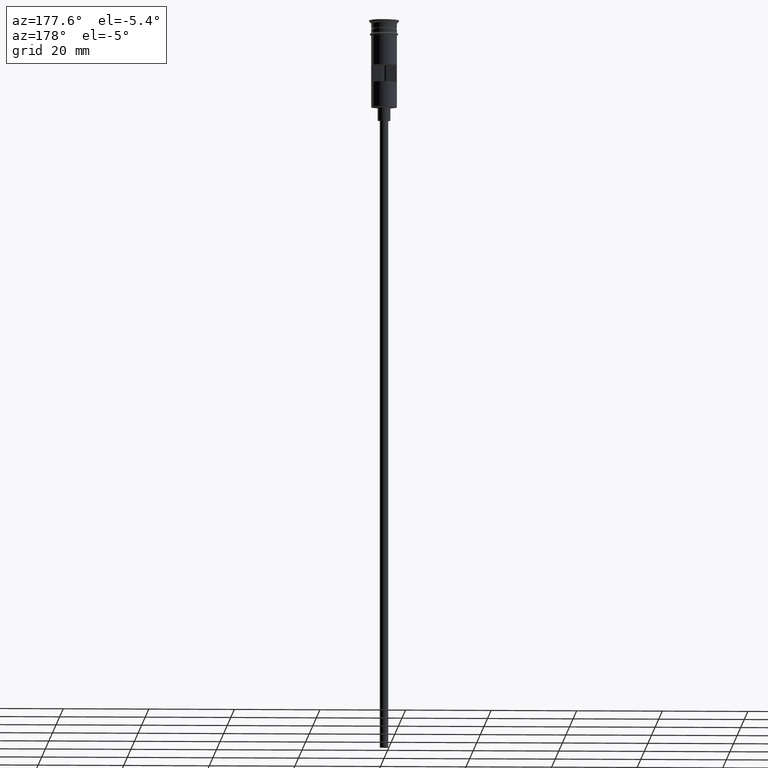
[diagram: clean part render]
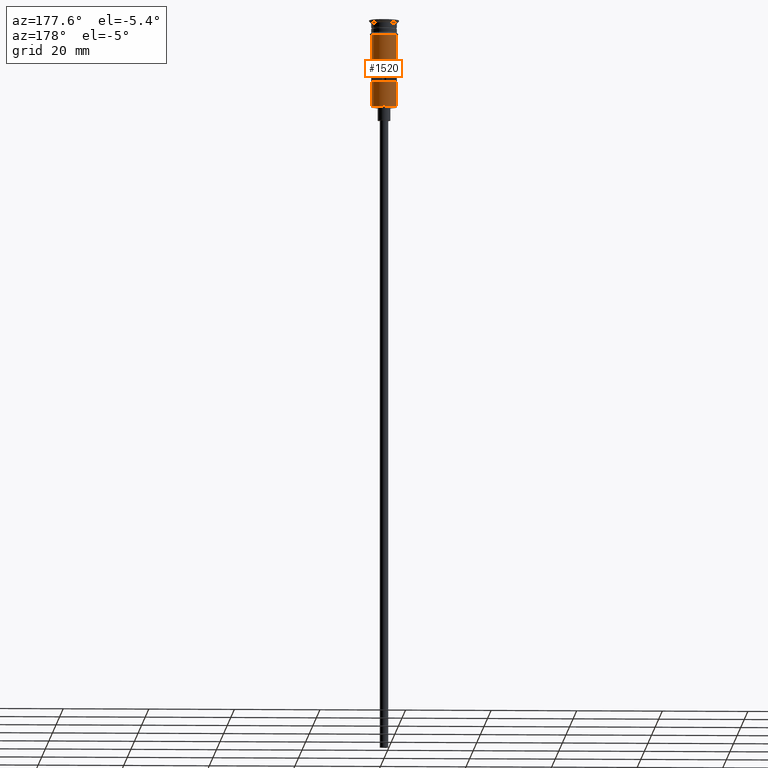
[diagram: same view with one face highlighted and labeled with its STEP entity id]
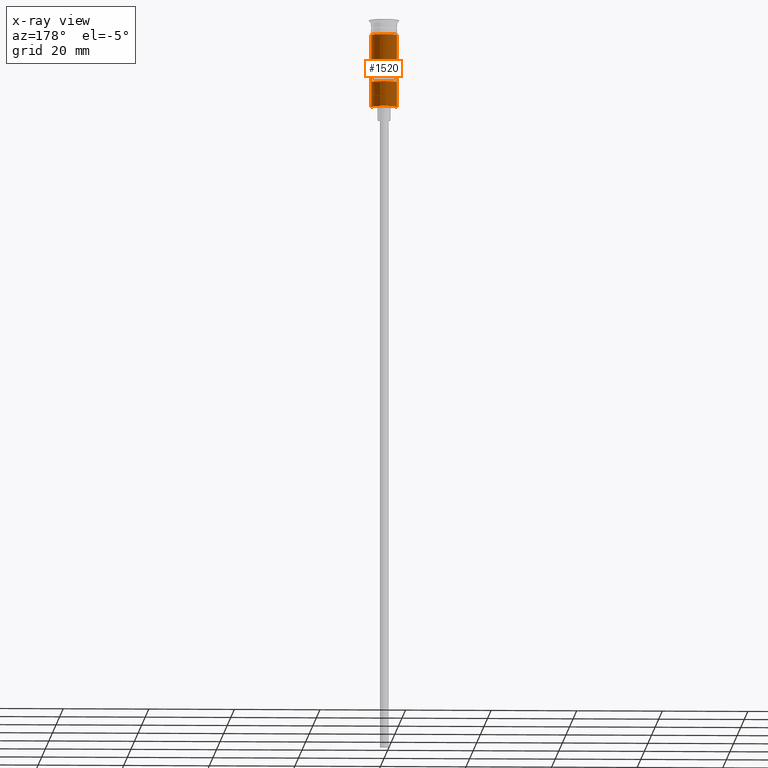
[diagram: x-ray of the same camera — body ghosted, the highlighted face saturated]
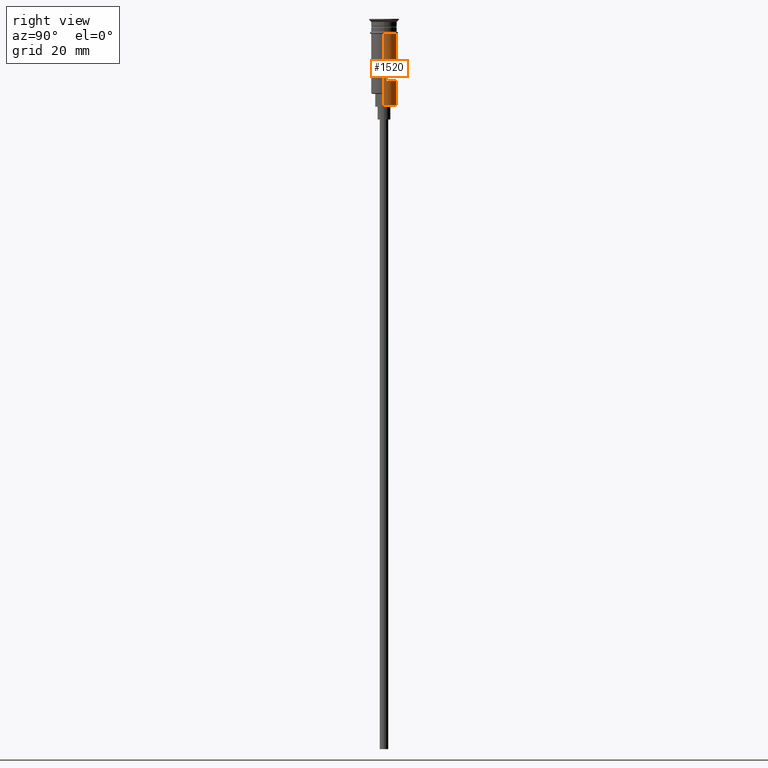
[diagram: same view with one face highlighted and labeled with its STEP entity id]
A machine part, auxiliary view. The second image highlights one B-rep face of the part: STEP entity #1520.
The next image is the same camera in x-ray: the body ghosted, the highlighted face saturated — about 0% of this face is hidden behind the body in this view.
A second angle (right view) of the same face is appended — the face is thin or edge-on in the first view.
In plain terms, the highlighted cylindrical surface (edge-blend (fillet) strip) has radius 3 mm, axis along (-0, -0, 1).
Its self-contained STEP definition (entity closure, byte-faithful):
#12 = VERTEX_POINT ( 'NONE', #182 ) ;
#24 = DIRECTION ( 'NONE',  ( -0.000000000000000000, -0.000000000000000000, 1.000000000000000000 ) ) ;
#27 = DIRECTION ( 'NONE',  ( -0.000000000000000000, -0.000000000000000000, 1.000000000000000000 ) ) ;
#30 = EDGE_CURVE ( 'NONE', #505, #1228, #552, .T. ) ;
#51 = LINE ( 'NONE', #426, #1279 ) ;
#60 = LINE ( 'NONE', #199, #672 ) ;
#67 = VERTEX_POINT ( 'NONE', #881 ) ;
#146 = CARTESIAN_POINT ( 'NONE',  ( 2.939387691339810260, 0.5999999999999994227, 0.000000000000000000 ) ) ;
#150 = LINE ( 'NONE', #740, #1378 ) ;
#182 = CARTESIAN_POINT ( 'NONE',  ( -2.939387691339810260, 0.5999999999999994227, -10.50000000000000000 ) ) ;
#184 = VECTOR ( 'NONE', #24, 1000.000000000000000 ) ;
#199 = CARTESIAN_POINT ( 'NONE',  ( -2.999999999999996891, 3.673940397442055924E-16, 0.000000000000000000 ) ) ;
#229 = EDGE_CURVE ( 'NONE', #1228, #1123, #873, .T. ) ;
#243 = EDGE_CURVE ( 'NONE', #984, #636, #60, .T. ) ;
#320 = AXIS2_PLACEMENT_3D ( 'NONE', #1300, #579, #465 ) ;
#330 = CARTESIAN_POINT ( 'NONE',  ( 0.000000000000000000, 0.000000000000000000, -20.29999999999995808 ) ) ;
#337 = EDGE_CURVE ( 'NONE', #1458, #636, #1374, .T. ) ;
#341 = DIRECTION ( 'NONE',  ( 1.000000000000000000, 0.000000000000000000, 0.000000000000000000 ) ) ;
#344 = EDGE_LOOP ( 'NONE', ( #1377, #694, #1275, #971 ) ) ;
#348 = CIRCLE ( 'NONE', #320, 2.999999999999996891 ) ;
#359 = ORIENTED_EDGE ( 'NONE', *, *, #243, .T. ) ;
#395 = VECTOR ( 'NONE', #27, 1000.000000000000000 ) ;
#400 = ORIENTED_EDGE ( 'NONE', *, *, #1297, .F. ) ;
#426 = CARTESIAN_POINT ( 'NONE',  ( 2.999999999999996891, 0.000000000000000000, 0.000000000000000000 ) ) ;
#452 = CARTESIAN_POINT ( 'NONE',  ( -2.939387691339810260, 0.5999999999999994227, -14.50000000000000000 ) ) ;
#465 = DIRECTION ( 'NONE',  ( 1.000000000000000000, 0.000000000000000000, 0.000000000000000000 ) ) ;
#485 = ORIENTED_EDGE ( 'NONE', *, *, #337, .F. ) ;
#488 = DIRECTION ( 'NONE',  ( 1.000000000000000000, 0.000000000000000000, 0.000000000000000000 ) ) ;
#500 = EDGE_CURVE ( 'NONE', #575, #1458, #51, .T. ) ;
#505 = VERTEX_POINT ( 'NONE', #1047 ) ;
#512 = DIRECTION ( 'NONE',  ( -0.000000000000000000, -0.000000000000000000, 1.000000000000000000 ) ) ;
#513 = EDGE_CURVE ( 'NONE', #1592, #67, #857, .T. ) ;
#520 = VECTOR ( 'NONE', #1386, 1000.000000000000000 ) ;
#530 = LINE ( 'NONE', #808, #184 ) ;
#550 = DIRECTION ( 'NONE',  ( -0.000000000000000000, -0.000000000000000000, 1.000000000000000000 ) ) ;
#552 = LINE ( 'NONE', #146, #520 ) ;
#566 = EDGE_CURVE ( 'NONE', #1123, #12, #821, .T. ) ;
#575 = VERTEX_POINT ( 'NONE', #1516 ) ;
#579 = DIRECTION ( 'NONE',  ( -0.000000000000000000, 0.000000000000000000, -1.000000000000000000 ) ) ;
#636 = VERTEX_POINT ( 'NONE', #1083 ) ;
#672 = VECTOR ( 'NONE', #832, 1000.000000000000000 ) ;
#683 = ORIENTED_EDGE ( 'NONE', *, *, #513, .T. ) ;
#694 = ORIENTED_EDGE ( 'NONE', *, *, #1452, .F. ) ;
#702 = CARTESIAN_POINT ( 'NONE',  ( 0.000000000000000000, 0.000000000000000000, -14.50000000000000000 ) ) ;
#722 = AXIS2_PLACEMENT_3D ( 'NONE', #702, #1310, #1550 ) ;
#739 = ORIENTED_EDGE ( 'NONE', *, *, #500, .F. ) ;
#740 = CARTESIAN_POINT ( 'NONE',  ( -2.999999999999995115, 0.000000000000000000, -20.50000000000000000 ) ) ;
#748 = AXIS2_PLACEMENT_3D ( 'NONE', #330, #1398, #1173 ) ;
#808 = CARTESIAN_POINT ( 'NONE',  ( 2.999999999999995115, 3.673940397442053952E-16, -20.50000000000000000 ) ) ;
#809 = EDGE_CURVE ( 'NONE', #67, #984, #150, .T. ) ;
#821 = LINE ( 'NONE', #921, #395 ) ;
#832 = DIRECTION ( 'NONE',  ( -0.000000000000000000, -0.000000000000000000, 1.000000000000000000 ) ) ;
#846 = DIRECTION ( 'NONE',  ( -0.000000000000000000, -0.000000000000000000, 1.000000000000000000 ) ) ;
#857 = CIRCLE ( 'NONE', #748, 2.999999999999996891 ) ;
#873 = CIRCLE ( 'NONE', #722, 2.999999999999996891 ) ;
#881 = CARTESIAN_POINT ( 'NONE',  ( -2.999999999999995115, 0.000000000000000000, -20.29999999999995808 ) ) ;
#921 = CARTESIAN_POINT ( 'NONE',  ( -2.939387691339810260, 0.5999999999999994227, 0.000000000000000000 ) ) ;
#944 = FACE_BOUND ( 'NONE', #344, .T. ) ;
#971 = ORIENTED_EDGE ( 'NONE', *, *, #229, .F. ) ;
#984 = VERTEX_POINT ( 'NONE', #1255 ) ;
#1047 = CARTESIAN_POINT ( 'NONE',  ( 2.939387691339810260, 0.5999999999999994227, -10.50000000000000000 ) ) ;
#1079 = DIRECTION ( 'NONE',  ( -0.000000000000000000, -0.000000000000000000, 1.000000000000000000 ) ) ;
#1083 = CARTESIAN_POINT ( 'NONE',  ( -2.999999999999999112, 3.673940397442058389E-16, -3.499999999999998668 ) ) ;
#1118 = CARTESIAN_POINT ( 'NONE',  ( 2.939387691339810260, 0.5999999999999994227, -14.50000000000000000 ) ) ;
#1123 = VERTEX_POINT ( 'NONE', #452 ) ;
#1169 = CARTESIAN_POINT ( 'NONE',  ( 0.000000000000000000, 0.000000000000000000, 0.000000000000000000 ) ) ;
#1173 = DIRECTION ( 'NONE',  ( -1.000000000000000000, 0.000000000000000000, 0.000000000000000000 ) ) ;
#1180 = AXIS2_PLACEMENT_3D ( 'NONE', #1482, #846, #488 ) ;
#1221 = EDGE_LOOP ( 'NONE', ( #1440, #359, #485, #739, #400, #683 ) ) ;
#1222 = CARTESIAN_POINT ( 'NONE',  ( 2.999999999999995115, 3.673940397442053952E-16, -20.29999999999995808 ) ) ;
#1228 = VERTEX_POINT ( 'NONE', #1118 ) ;
#1255 = CARTESIAN_POINT ( 'NONE',  ( -2.999999999999995115, 0.000000000000000000, -17.30000000000000782 ) ) ;
#1275 = ORIENTED_EDGE ( 'NONE', *, *, #566, .F. ) ;
#1279 = VECTOR ( 'NONE', #550, 1000.000000000000000 ) ;
#1284 = AXIS2_PLACEMENT_3D ( 'NONE', #1169, #1079, #341 ) ;
#1297 = EDGE_CURVE ( 'NONE', #1592, #575, #530, .T. ) ;
#1300 = CARTESIAN_POINT ( 'NONE',  ( 0.000000000000000000, 0.000000000000000000, -10.50000000000000000 ) ) ;
#1310 = DIRECTION ( 'NONE',  ( 0.000000000000000000, 0.000000000000000000, 1.000000000000000000 ) ) ;
#1374 = CIRCLE ( 'NONE', #1180, 2.999999999999998668 ) ;
#1377 = ORIENTED_EDGE ( 'NONE', *, *, #30, .F. ) ;
#1378 = VECTOR ( 'NONE', #512, 1000.000000000000000 ) ;
#1386 = DIRECTION ( 'NONE',  ( 0.000000000000000000, 0.000000000000000000, -1.000000000000000000 ) ) ;
#1398 = DIRECTION ( 'NONE',  ( 0.000000000000000000, 0.000000000000000000, 1.000000000000000000 ) ) ;
#1413 = CARTESIAN_POINT ( 'NONE',  ( 2.999999999999998668, 0.000000000000000000, -3.499999999999998668 ) ) ;
#1427 = CYLINDRICAL_SURFACE ( 'NONE', #1284, 2.999999999999996891 ) ;
#1438 = FACE_OUTER_BOUND ( 'NONE', #1221, .T. ) ;
#1440 = ORIENTED_EDGE ( 'NONE', *, *, #809, .T. ) ;
#1452 = EDGE_CURVE ( 'NONE', #12, #505, #348, .T. ) ;
#1458 = VERTEX_POINT ( 'NONE', #1413 ) ;
#1482 = CARTESIAN_POINT ( 'NONE',  ( 0.000000000000000000, 0.000000000000000000, -3.499999999999998668 ) ) ;
#1516 = CARTESIAN_POINT ( 'NONE',  ( 2.999999999999996891, 3.673940397442055924E-16, -17.30000000000000782 ) ) ;
#1520 = ADVANCED_FACE ( 'NONE', ( #944, #1438 ), #1427, .T. ) ;
#1550 = DIRECTION ( 'NONE',  ( -1.000000000000000000, 0.000000000000000000, 0.000000000000000000 ) ) ;
#1592 = VERTEX_POINT ( 'NONE', #1222 ) ;